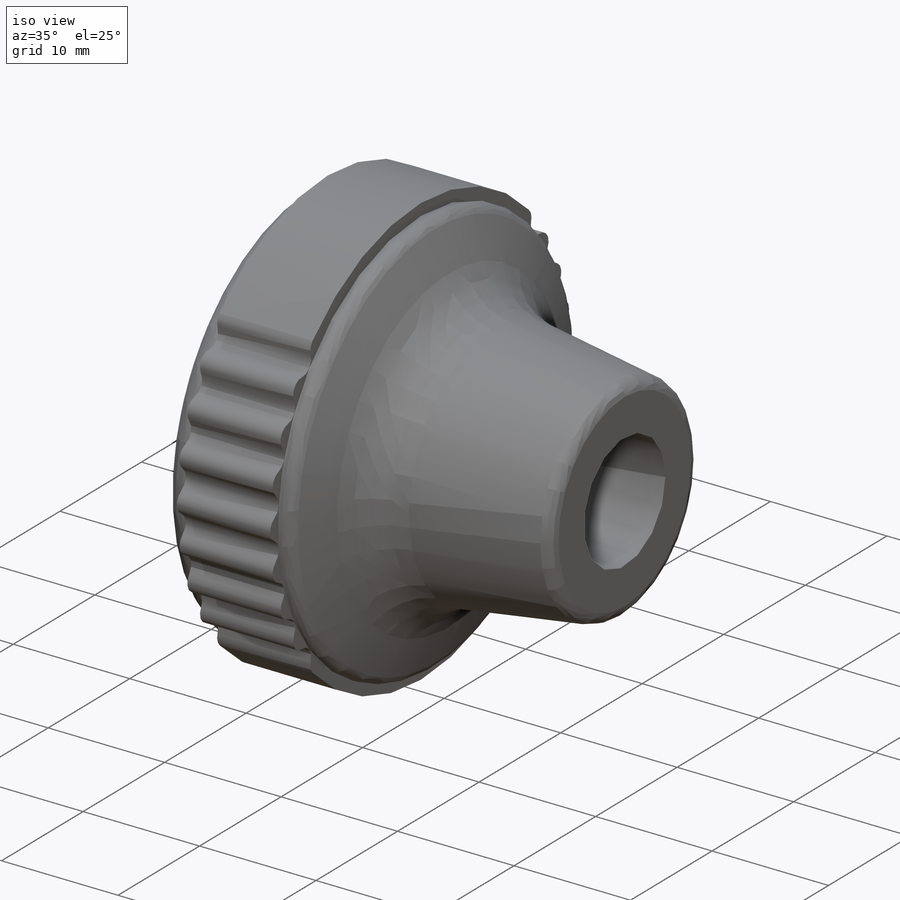
[diagram: iso view]
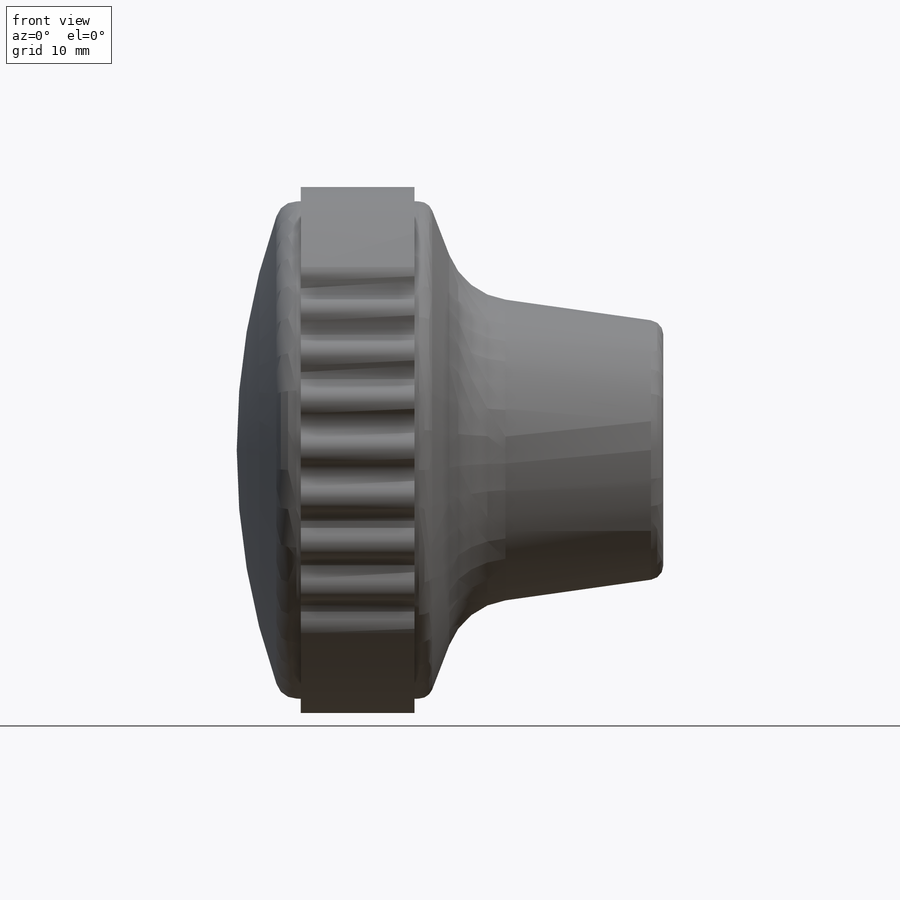
[diagram: front view]
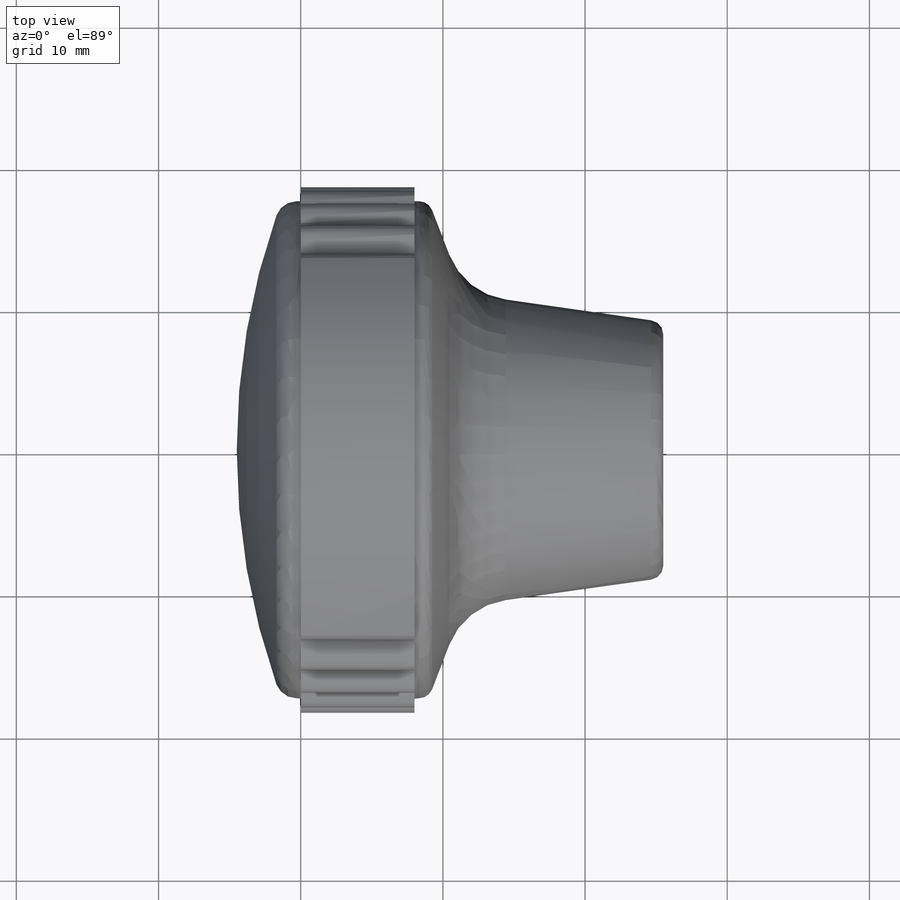
[diagram: top view]
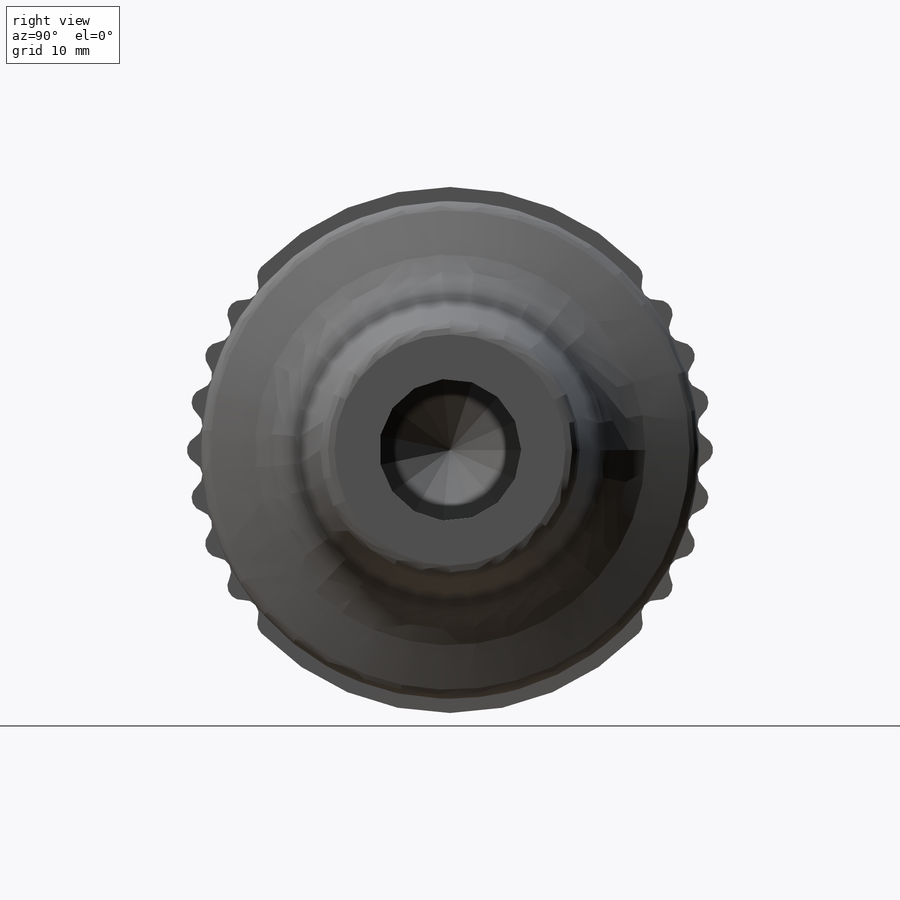
[diagram: right view]
SOLIDWORKS PART (.sldprt)
format: sldprt  version: not decoded by parser v0  size: 359,936 bytes
history: native  units: mm
features: sketch x4, plane x3, material x1, revolve x1, hole x1, cut_extrude x1 + 2 further entries (+7 scaffold rows collapsed)
feature tree (20):
  "Annotations"  RD1=3.959621mm RD2=10.235541mm RD3=24.641421mm
  scaffold x7  (default folders/planes/origin — collapsed)
  material  "Matériau <non spécifié>"
  "Corps de surface"
  plane  "face"
  plane  "dessus"
  plane  "coté"
  sketch  "Esquisse1"  dims[c1.D9=1.0mm c1.D10=1.0mm c1.D11=5.0mm c1.D13=100.0mm c1.D14=1.5mm c1.D12=50.0mm c1.D1=18.5mm c1.D2=8.0mm c1.D3=17.5mm c1.D4=17.5mm c1.D5=14.0mm c1.D6=1.0mm c1.D7=11.0mm c1.D8=9.0mm c2.D12=30.0mm c2.D13=50.0mm c3.D12=17.5mm c3.D13=30.0mm]
  revolve  "Base-Révolution"  Angle=360deg
  hole  "Perçage1"  Diameter=10mm Depth=20.5mm
  sketch  "Esquisse3"
  sketch  "Esquisse2"  dims[c1.D1=~97.659253deg c1.D2=~82.982399deg c1.Diamètre=10.0mm c2.D2=100.0mm c2.D3=~82.982399deg c2.D4=90.0deg c3.D3=~97.716715deg c3.Profondeur=20.5mm c3.Angle=118.0deg]
  sketch  "Esquisse4"  dims[c1.D3=2.0mm c1.D4=2.0mm c1.D5=2.0mm c1.D6=~0.895778mm c2.D3=1.0mm c2.D4=1.0mm c2.D5=~0.890437mm c2.D1=2.0mm c3.D3=2.0mm c3.D4=12.0mm c3.D1=~25.926887mm c4.D1=45.0deg c4.D2=~43.153054mm c5.D2=45.0deg c5.D1=0.0mm]
  cut_extrude  "Enlèv. mat.-Extru.2"  [1 undecoded]
decode coverage: 5 of 7 modeling features carry decoded parameters; 2 rows unclassified (native names shown)
note: ~ marks probable driven/reference dimensions
note: 1 parameter value undecoded
note: suppression state not decoded; provenance and decode notes live in map.json
